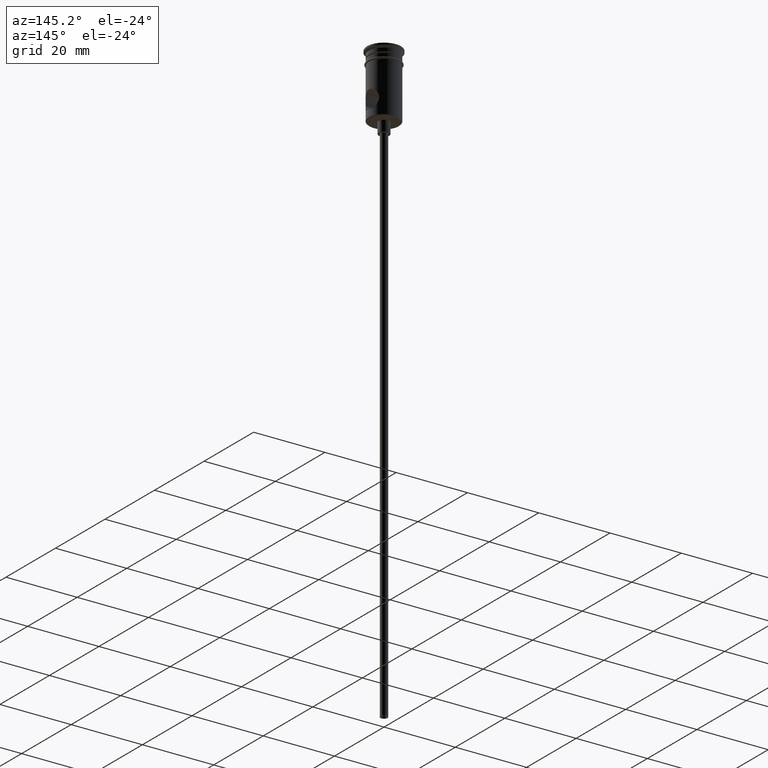
[diagram: clean part render]
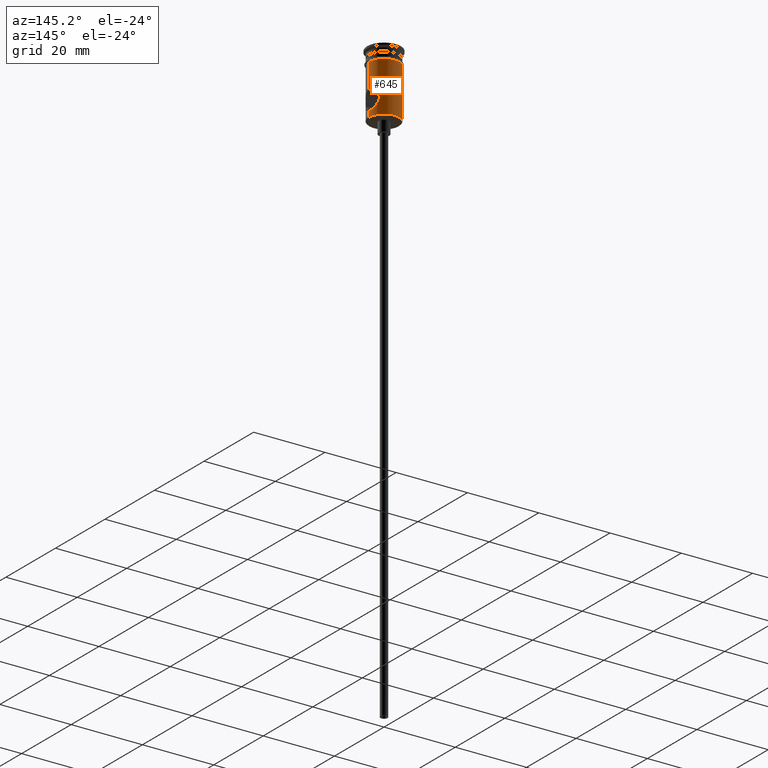
[diagram: same view with one face highlighted and labeled with its STEP entity id]
A machine part, auxiliary view. The second image highlights one B-rep face of the part: STEP entity #645.
In plain terms, the highlighted cylindrical surface (edge-blend (fillet) strip) has radius 4.25 mm, axis along (-0, -0, 1).
Its self-contained STEP definition (entity closure, byte-faithful):
#8 = CARTESIAN_POINT ( 'NONE',  ( 4.249999999999997335, 0.000000000000000000, -16.25000000000000000 ) ) ;
#10 = CARTESIAN_POINT ( 'NONE',  ( 3.317732867736307600, 2.656581032706775591, -14.23383826006679698 ) ) ;
#16 = CARTESIAN_POINT ( 'NONE',  ( -3.240215677518331283, 2.750182252353511991, -13.68181968656044667 ) ) ;
#19 = EDGE_CURVE ( 'NONE', #1281, #640, #1239, .T. ) ;
#20 = DIRECTION ( 'NONE',  ( -0.000000000000000000, -0.000000000000000000, 1.000000000000000000 ) ) ;
#27 = CARTESIAN_POINT ( 'NONE',  ( -4.015423691679791851, 1.401263422304992012, -15.87281956388753379 ) ) ;
#53 = CARTESIAN_POINT ( 'NONE',  ( 4.249999999999997335, 0.000000000000000000, -17.79999999999995808 ) ) ;
#124 = CARTESIAN_POINT ( 'NONE',  ( 3.523702571072897083, 2.378944658106735499, -14.89054770374115755 ) ) ;
#142 = CARTESIAN_POINT ( 'NONE',  ( 3.362015581049109247, 2.601310859038222123, -14.40956275273693521 ) ) ;
#158 = CARTESIAN_POINT ( 'NONE',  ( -3.256642946224108215, 2.731120776416927409, -13.87021416548673969 ) ) ;
#195 = LINE ( 'NONE', #1150, #322 ) ;
#226 = EDGE_CURVE ( 'NONE', #1182, #640, #1187, .T. ) ;
#240 = LINE ( 'NONE', #391, #1038 ) ;
#243 = CARTESIAN_POINT ( 'NONE',  ( 4.025284254402694550, 1.406141545853144326, -15.89065464230831459 ) ) ;
#256 = CARTESIAN_POINT ( 'NONE',  ( -3.360420657424080026, 2.603382055344573232, -14.40388255281498076 ) ) ;
#258 = CARTESIAN_POINT ( 'NONE',  ( 3.647785336404484102, 2.183922992056437806, -15.18032168571427043 ) ) ;
#261 = CARTESIAN_POINT ( 'NONE',  ( -3.317391764057896264, 2.657012432191005136, -12.76717152618819284 ) ) ;
#264 = CARTESIAN_POINT ( 'NONE',  ( 3.840622235673528007, 1.825278692726477692, -11.43557704835951760 ) ) ;
#269 = CARTESIAN_POINT ( 'NONE',  ( -3.256546954943039474, 2.731246073005494157, -13.12980069484267176 ) ) ;
#273 = CARTESIAN_POINT ( 'NONE',  ( 4.249999999999999112, 0.000000000000000000, -3.799999999999998934 ) ) ;
#275 = CARTESIAN_POINT ( 'NONE',  ( -3.523640592887602896, 2.379042071033715455, -12.10959703295216450 ) ) ;
#296 = VERTEX_POINT ( 'NONE', #1065 ) ;
#302 = CARTESIAN_POINT ( 'NONE',  ( -4.249999999999997335, 0.000000000000000000, -16.25000000000000000 ) ) ;
#306 = ORIENTED_EDGE ( 'NONE', *, *, #914, .F. ) ;
#322 = VECTOR ( 'NONE', #1390, 1000.000000000000000 ) ;
#332 = CARTESIAN_POINT ( 'NONE',  ( -4.249999999999997335, 5.204748896376248727E-16, 0.000000000000000000 ) ) ;
#352 = VERTEX_POINT ( 'NONE', #778 ) ;
#353 = CARTESIAN_POINT ( 'NONE',  ( -3.903270111302728829, 1.704091631636142301, -11.31349511279738351 ) ) ;
#356 = CARTESIAN_POINT ( 'NONE',  ( 4.249999999999999112, 0.1876833508229764913, -16.25000000000000355 ) ) ;
#358 = CARTESIAN_POINT ( 'NONE',  ( 0.000000000000000000, 0.000000000000000000, -17.79999999999995808 ) ) ;
#359 = ORIENTED_EDGE ( 'NONE', *, *, #1253, .T. ) ;
#361 = EDGE_CURVE ( 'NONE', #352, #296, #240, .T. ) ;
#363 = CARTESIAN_POINT ( 'NONE',  ( 3.463282699767082029, 2.464882569099720477, -12.26760260682620718 ) ) ;
#384 = FACE_OUTER_BOUND ( 'NONE', #1169, .T. ) ;
#391 = CARTESIAN_POINT ( 'NONE',  ( -4.249999999999997335, 5.204748896376248727E-16, 0.000000000000000000 ) ) ;
#424 = ORIENTED_EDGE ( 'NONE', *, *, #1308, .F. ) ;
#429 = CARTESIAN_POINT ( 'NONE',  ( 4.249999999999997335, -5.964156999285768506E-20, -10.75000000000000000 ) ) ;
#451 = CARTESIAN_POINT ( 'NONE',  ( 3.316522469792354322, 2.658088918086265906, -12.77126404352310196 ) ) ;
#459 = CARTESIAN_POINT ( 'NONE',  ( 3.523327046384830741, 2.379510545741978067, -12.11037569948939741 ) ) ;
#464 = CARTESIAN_POINT ( 'NONE',  ( -4.198035567893796838, 0.7457751924957479739, -16.17129962006159261 ) ) ;
#484 = VECTOR ( 'NONE', #524, 1000.000000000000000 ) ;
#524 = DIRECTION ( 'NONE',  ( -0.000000000000000000, -0.000000000000000000, 1.000000000000000000 ) ) ;
#532 = CARTESIAN_POINT ( 'NONE',  ( 4.068014576300313934, 1.242421292593817173, -11.03994418658763088 ) ) ;
#550 = EDGE_CURVE ( 'NONE', #1182, #296, #1025, .T. ) ;
#552 = CARTESIAN_POINT ( 'NONE',  ( 4.249999999999997335, -5.964156999285768506E-20, -10.75000000000000000 ) ) ;
#562 = CARTESIAN_POINT ( 'NONE',  ( 3.256261808067939967, 2.731577754047776807, -13.13260952066415577 ) ) ;
#567 = CARTESIAN_POINT ( 'NONE',  ( -4.190207837038134819, 0.7335316360740457009, -10.84318649086376318 ) ) ;
#573 = CARTESIAN_POINT ( 'NONE',  ( -3.712426123095563746, 2.073528200962002188, -15.31476372687120246 ) ) ;
#577 = DIRECTION ( 'NONE',  ( -1.000000000000000000, 0.000000000000000000, 0.000000000000000000 ) ) ;
#587 = CARTESIAN_POINT ( 'NONE',  ( -3.901047162632663934, 1.693811570780205056, -15.67366377900273555 ) ) ;
#594 = DIRECTION ( 'NONE',  ( -0.000000000000000000, -0.000000000000000000, 1.000000000000000000 ) ) ;
#614 = DIRECTION ( 'NONE',  ( -0.000000000000000000, -0.000000000000000000, 1.000000000000000000 ) ) ;
#640 = VERTEX_POINT ( 'NONE', #1378 ) ;
#645 = ADVANCED_FACE ( 'NONE', ( #384 ), #1142, .T. ) ;
#665 = CARTESIAN_POINT ( 'NONE',  ( 4.155442691875919969, 0.9081020294093200551, -10.89791699256592494 ) ) ;
#685 = CARTESIAN_POINT ( 'NONE',  ( 4.249999999999997335, 0.000000000000000000, -16.25000000000000000 ) ) ;
#688 = CARTESIAN_POINT ( 'NONE',  ( -3.463853683506851411, 2.464090659896389646, -14.73404173964449981 ) ) ;
#695 = ORIENTED_EDGE ( 'NONE', *, *, #550, .F. ) ;
#704 = CARTESIAN_POINT ( 'NONE',  ( 3.902301534695393759, 1.690823709015212728, -11.32411174488600203 ) ) ;
#705 = ORIENTED_EDGE ( 'NONE', *, *, #226, .T. ) ;
#708 = VERTEX_POINT ( 'NONE', #8 ) ;
#709 = CARTESIAN_POINT ( 'NONE',  ( -3.360805570480984716, 2.602867017081773149, -12.59486312964815191 ) ) ;
#731 = VERTEX_POINT ( 'NONE', #429 ) ;
#778 = CARTESIAN_POINT ( 'NONE',  ( -4.249999999999997335, 5.204748896376248727E-16, -17.79999999999995808 ) ) ;
#779 = CARTESIAN_POINT ( 'NONE',  ( 4.237633467721872549, 0.3712803050584276843, -16.23099565620633911 ) ) ;
#789 = LINE ( 'NONE', #1125, #1418 ) ;
#795 = CARTESIAN_POINT ( 'NONE',  ( -3.712306572358252232, 2.073768640790504936, -11.68546380521985384 ) ) ;
#800 = CARTESIAN_POINT ( 'NONE',  ( 3.903649545419221045, 1.703087824547434570, -15.68708491731533883 ) ) ;
#803 = CARTESIAN_POINT ( 'NONE',  ( -4.024918142879832850, 1.407629767315599523, -11.10993618836867469 ) ) ;
#805 = CARTESIAN_POINT ( 'NONE',  ( 3.712446595946066186, 2.073586683869199199, -11.68513838162200358 ) ) ;
#809 = CARTESIAN_POINT ( 'NONE',  ( -4.237714452335332282, 0.3710614493120016899, -10.76887567396049938 ) ) ;
#826 = CARTESIAN_POINT ( 'NONE',  ( 0.000000000000000000, 0.000000000000000000, 0.000000000000000000 ) ) ;
#856 = AXIS2_PLACEMENT_3D ( 'NONE', #826, #1264, #1039 ) ;
#888 = CARTESIAN_POINT ( 'NONE',  ( 4.015772538107726497, 1.400147493956907407, -11.12661391491455909 ) ) ;
#890 = EDGE_CURVE ( 'NONE', #731, #1281, #789, .T. ) ;
#891 = CARTESIAN_POINT ( 'NONE',  ( 3.240514175250544415, 2.749830527279015335, -13.68891363090301461 ) ) ;
#909 = CARTESIAN_POINT ( 'NONE',  ( 3.240228426298894515, 2.750167230217083425, -13.31605301161300225 ) ) ;
#913 = CARTESIAN_POINT ( 'NONE',  ( -4.249999999999997335, 0.1847159666058112992, -10.75000000000000000 ) ) ;
#914 = EDGE_CURVE ( 'NONE', #708, #731, #1361, .T. ) ;
#919 = ORIENTED_EDGE ( 'NONE', *, *, #361, .T. ) ;
#920 = CARTESIAN_POINT ( 'NONE',  ( -3.646730217503171279, 2.185675347730814622, -15.17803752739326839 ) ) ;
#947 = DIRECTION ( 'NONE',  ( 1.000000000000000000, 0.000000000000000000, 0.000000000000000000 ) ) ;
#980 = AXIS2_PLACEMENT_3D ( 'NONE', #358, #594, #577 ) ;
#994 = CARTESIAN_POINT ( 'NONE',  ( 4.155334731455366359, 0.9083529674580627100, -16.10190042141340427 ) ) ;
#997 = VERTEX_POINT ( 'NONE', #53 ) ;
#999 = CARTESIAN_POINT ( 'NONE',  ( -3.240527330953798746, 2.749815025658500112, -13.31270839782863291 ) ) ;
#1002 = CARTESIAN_POINT ( 'NONE',  ( 4.190603293377628269, 0.7309107395663115847, -16.15743406878304711 ) ) ;
#1009 = CARTESIAN_POINT ( 'NONE',  ( -3.839379489766063802, 1.827783371516099153, -15.56206074870781109 ) ) ;
#1011 = CARTESIAN_POINT ( 'NONE',  ( 3.257287351234153583, 2.730357719509510339, -13.87561695753797686 ) ) ;
#1025 = B_SPLINE_CURVE_WITH_KNOTS ( 'NONE', 3,
 ( #1335, #913, #809, #567, #1317, #803, #353, #795, #1220, #275, #1137, #709, #261, #269, #999, #16, #158, #1327, #256, #688, #1131, #920, #573, #1009, #587, #27, #1123, #464, #1347, #302 ),
 .UNSPECIFIED., .F., .F.,
 ( 4, 2, 2, 2, 2, 2, 2, 2, 2, 2, 2, 2, 2, 2, 4 ),
 ( 0.008865950887352312335, 0.009419240771521925071, 0.009972530655691537807, 0.01107911042403076501, 0.01163240030820037949, 0.01218569019236999396, 0.01273898007653961016, 0.01329226996070922463, 0.01384555984487884084, 0.01439884972904845531, 0.01495213961321806978, 0.01550542949738768425, 0.01605871938155729872, 0.01661200926572691319, 0.01771858903406614560 ),
 .UNSPECIFIED. ) ;
#1038 = VECTOR ( 'NONE', #614, 1000.000000000000000 ) ;
#1039 = DIRECTION ( 'NONE',  ( 1.000000000000000000, 0.000000000000000000, 0.000000000000000000 ) ) ;
#1052 = CARTESIAN_POINT ( 'NONE',  ( 0.000000000000000000, 0.000000000000000000, -3.799999999999998934 ) ) ;
#1065 = CARTESIAN_POINT ( 'NONE',  ( -4.249999999999997335, 0.000000000000000000, -16.25000000000000000 ) ) ;
#1110 = ORIENTED_EDGE ( 'NONE', *, *, #890, .F. ) ;
#1111 = CARTESIAN_POINT ( 'NONE',  ( 3.647647208285519582, 2.184164315469646400, -11.81995465034544956 ) ) ;
#1123 = CARTESIAN_POINT ( 'NONE',  ( -4.067922794682170107, 1.242497466100458858, -15.95989443293908927 ) ) ;
#1125 = CARTESIAN_POINT ( 'NONE',  ( 4.249999999999997335, 0.000000000000000000, 0.000000000000000000 ) ) ;
#1131 = CARTESIAN_POINT ( 'NONE',  ( -3.522745161808382264, 2.380353866525853679, -14.88812900666103900 ) ) ;
#1137 = CARTESIAN_POINT ( 'NONE',  ( -3.463585092110388786, 2.464449046115352537, -12.26684130713697840 ) ) ;
#1142 = CYLINDRICAL_SURFACE ( 'NONE', #856, 4.249999999999997335 ) ;
#1150 = CARTESIAN_POINT ( 'NONE',  ( 4.249999999999997335, 0.000000000000000000, 0.000000000000000000 ) ) ;
#1169 = EDGE_LOOP ( 'NONE', ( #359, #919, #695, #705, #1326, #1110, #306, #424 ) ) ;
#1182 = VERTEX_POINT ( 'NONE', #1236 ) ;
#1187 = LINE ( 'NONE', #332, #484 ) ;
#1194 = CARTESIAN_POINT ( 'NONE',  ( 4.237534661787413448, 0.3728801659703385174, -10.76915465875327271 ) ) ;
#1220 = CARTESIAN_POINT ( 'NONE',  ( -3.647847344689137294, 2.183825531822105592, -11.81953350730051788 ) ) ;
#1234 = CARTESIAN_POINT ( 'NONE',  ( 3.464973689711408511, 2.462503661352578810, -14.73701184486718319 ) ) ;
#1236 = CARTESIAN_POINT ( 'NONE',  ( -4.249999999999997335, 5.205345311974756415E-16, -10.75000000000000000 ) ) ;
#1239 = CIRCLE ( 'NONE', #1300, 4.249999999999999112 ) ;
#1253 = EDGE_CURVE ( 'NONE', #997, #352, #1367, .T. ) ;
#1264 = DIRECTION ( 'NONE',  ( -0.000000000000000000, -0.000000000000000000, 1.000000000000000000 ) ) ;
#1269 = DIRECTION ( 'NONE',  ( -0.000000000000000000, -0.000000000000000000, 1.000000000000000000 ) ) ;
#1281 = VERTEX_POINT ( 'NONE', #273 ) ;
#1292 = CARTESIAN_POINT ( 'NONE',  ( 4.190033994520313776, 0.7344077564868169983, -10.84346068291941201 ) ) ;
#1300 = AXIS2_PLACEMENT_3D ( 'NONE', #1052, #1269, #947 ) ;
#1308 = EDGE_CURVE ( 'NONE', #997, #708, #195, .T. ) ;
#1317 = CARTESIAN_POINT ( 'NONE',  ( -4.155620439744574846, 0.9072158869068334131, -10.89763742324026552 ) ) ;
#1318 = CARTESIAN_POINT ( 'NONE',  ( 4.249999999999996447, 0.1849937454683881766, -10.74999999999999822 ) ) ;
#1322 = CARTESIAN_POINT ( 'NONE',  ( 3.713419268557901276, 2.071747888570477425, -15.31678227358735889 ) ) ;
#1326 = ORIENTED_EDGE ( 'NONE', *, *, #19, .F. ) ;
#1327 = CARTESIAN_POINT ( 'NONE',  ( -3.316708597254388824, 2.657854032008955869, -14.22930869200700954 ) ) ;
#1335 = CARTESIAN_POINT ( 'NONE',  ( -4.249999999999997335, 5.205345311974756415E-16, -10.75000000000000000 ) ) ;
#1338 = CARTESIAN_POINT ( 'NONE',  ( 3.360185467375182533, 2.603675625495278645, -12.59704781336165524 ) ) ;
#1347 = CARTESIAN_POINT ( 'NONE',  ( -4.249999999999997335, 0.3748030667232212787, -16.25000000000000000 ) ) ;
#1361 = B_SPLINE_CURVE_WITH_KNOTS ( 'NONE', 3,
 ( #685, #356, #779, #1002, #994, #243, #800, #1322, #258, #124, #1234, #142, #10, #1011, #891, #909, #562, #451, #1338, #363, #459, #1111, #805, #264, #704, #888, #532, #665, #1292, #1194, #1318, #552 ),
 .UNSPECIFIED., .F., .F.,
 ( 4, 2, 2, 2, 2, 2, 2, 2, 2, 2, 2, 2, 2, 2, 2, 4 ),
 ( 0.000000000000000000, 0.0005541219304595177862, 0.001108243860919035572, 0.002216487721838075482, 0.002770609652297595545, 0.003324731582757115608, 0.003878853513216635237, 0.004432975443676155300, 0.004987097374135674929, 0.005541219304595194559, 0.006095341235054715055, 0.006649463165514233817, 0.007203585095973753447, 0.007757707026433273076, 0.008311828956892794440, 0.008865950887352312335 ),
 .UNSPECIFIED. ) ;
#1367 = CIRCLE ( 'NONE', #980, 4.249999999999997335 ) ;
#1378 = CARTESIAN_POINT ( 'NONE',  ( -4.249999999999999112, 5.204748896376249713E-16, -3.799999999999998934 ) ) ;
#1390 = DIRECTION ( 'NONE',  ( -0.000000000000000000, -0.000000000000000000, 1.000000000000000000 ) ) ;
#1418 = VECTOR ( 'NONE', #20, 1000.000000000000000 ) ;